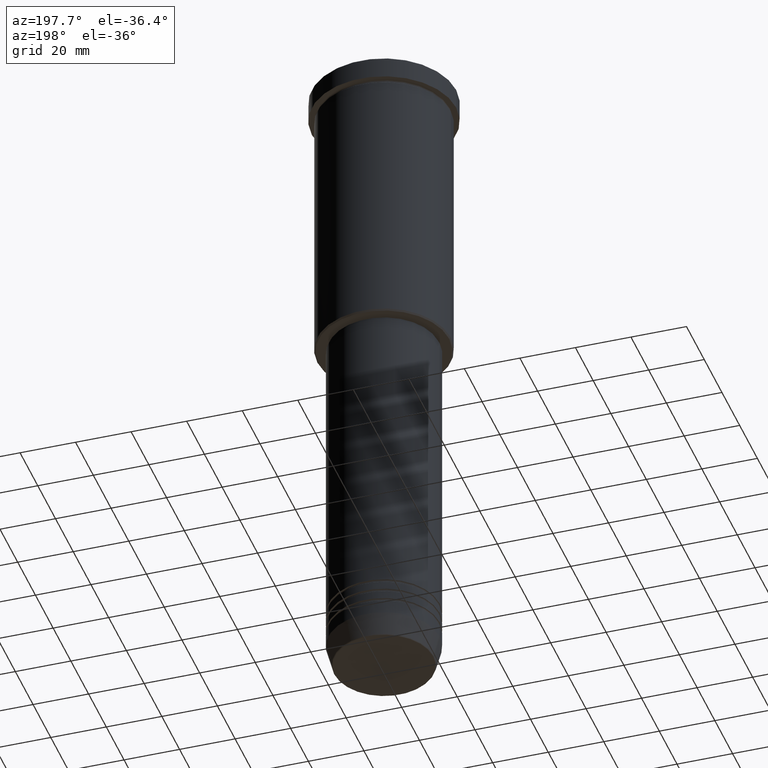
[diagram: clean part render]
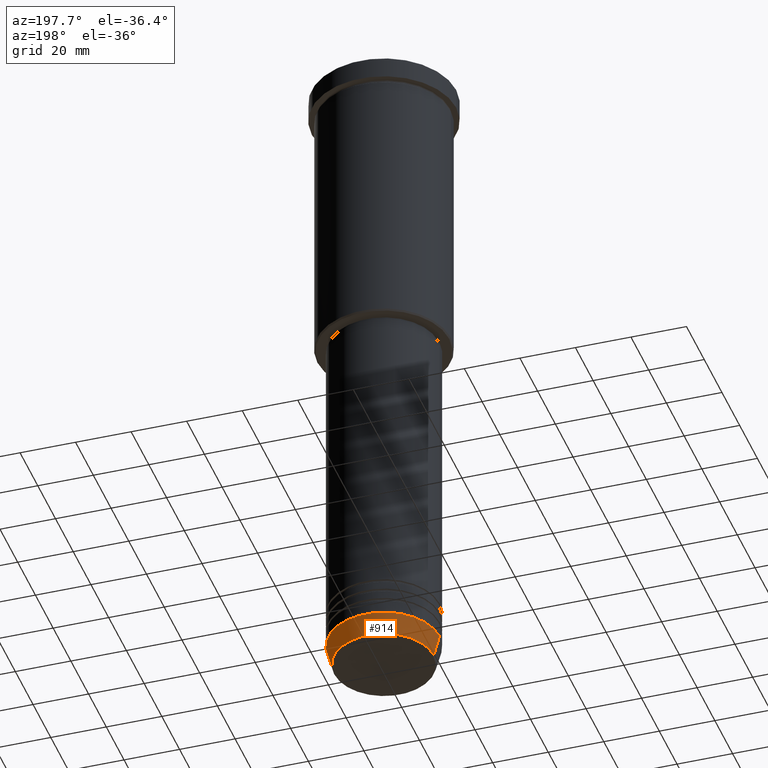
[diagram: same view with one face highlighted and labeled with its STEP entity id]
A machine part, auxiliary view. The second image highlights one B-rep face of the part: STEP entity #914.
In plain terms, the highlighted conical surface has half-angle 15 deg.
Its self-contained STEP definition (entity closure, byte-faithful):
#18 = VERTEX_POINT ( 'NONE', #418 ) ;
#135 = ORIENTED_EDGE ( 'NONE', *, *, #593, .F. ) ;
#143 = EDGE_CURVE ( 'NONE', #307, #1101, #1011, .T. ) ;
#238 = AXIS2_PLACEMENT_3D ( 'NONE', #1102, #1017, #905 ) ;
#251 = ORIENTED_EDGE ( 'NONE', *, *, #143, .T. ) ;
#287 = CARTESIAN_POINT ( 'NONE',  ( -17.95570587970607690, 2.324116685748021371E-15, -239.6294095225512706 ) ) ;
#291 = CARTESIAN_POINT ( 'NONE',  ( -20.00000000000000355, 2.449293598294706907E-15, -232.0000000000000000 ) ) ;
#302 = EDGE_CURVE ( 'NONE', #1101, #514, #736, .T. ) ;
#307 = VERTEX_POINT ( 'NONE', #926 ) ;
#329 = CARTESIAN_POINT ( 'NONE',  ( 0.000000000000000000, 0.000000000000000000, -232.0000000000000000 ) ) ;
#341 = DIRECTION ( 'NONE',  ( 1.000000000000000000, 0.000000000000000000, 0.000000000000000000 ) ) ;
#381 = ORIENTED_EDGE ( 'NONE', *, *, #302, .T. ) ;
#418 = CARTESIAN_POINT ( 'NONE',  ( 20.00000000000000355, 0.000000000000000000, -232.0000000000000000 ) ) ;
#478 = FACE_OUTER_BOUND ( 'NONE', #638, .T. ) ;
#486 = AXIS2_PLACEMENT_3D ( 'NONE', #803, #896, #995 ) ;
#514 = VERTEX_POINT ( 'NONE', #575 ) ;
#526 = VECTOR ( 'NONE', #650, 1000.000000000000000 ) ;
#575 = CARTESIAN_POINT ( 'NONE',  ( -20.00000000000000355, 2.449293598294706907E-15, -232.0000000000000000 ) ) ;
#593 = EDGE_CURVE ( 'NONE', #18, #514, #902, .T. ) ;
#638 = EDGE_LOOP ( 'NONE', ( #251, #381, #135, #910 ) ) ;
#640 = DIRECTION ( 'NONE',  ( 0.2588190451025213501, 0.000000000000000000, 0.9659258262890680902 ) ) ;
#650 = DIRECTION ( 'NONE',  ( -0.2588190451025213501, 3.169619151431772337E-17, 0.9659258262890680902 ) ) ;
#655 = CARTESIAN_POINT ( 'NONE',  ( 20.00000000000000355, 0.000000000000000000, -232.0000000000000000 ) ) ;
#729 = LINE ( 'NONE', #655, #878 ) ;
#736 = LINE ( 'NONE', #291, #526 ) ;
#803 = CARTESIAN_POINT ( 'NONE',  ( 0.000000000000000000, 0.000000000000000000, -239.6294095225512706 ) ) ;
#878 = VECTOR ( 'NONE', #640, 1000.000000000000000 ) ;
#883 = AXIS2_PLACEMENT_3D ( 'NONE', #329, #1166, #341 ) ;
#884 = CONICAL_SURFACE ( 'NONE', #238, 20.00000000000000355, 0.2617993877991500740 ) ;
#896 = DIRECTION ( 'NONE',  ( -0.000000000000000000, -0.000000000000000000, 1.000000000000000000 ) ) ;
#902 = CIRCLE ( 'NONE', #883, 20.00000000000000355 ) ;
#905 = DIRECTION ( 'NONE',  ( 1.000000000000000000, 0.000000000000000000, 0.000000000000000000 ) ) ;
#910 = ORIENTED_EDGE ( 'NONE', *, *, #958, .F. ) ;
#914 = ADVANCED_FACE ( 'NONE', ( #478 ), #884, .T. ) ;
#926 = CARTESIAN_POINT ( 'NONE',  ( 17.95570587970607690, 0.000000000000000000, -239.6294095225512706 ) ) ;
#958 = EDGE_CURVE ( 'NONE', #307, #18, #729, .T. ) ;
#995 = DIRECTION ( 'NONE',  ( 1.000000000000000000, 0.000000000000000000, 0.000000000000000000 ) ) ;
#1011 = CIRCLE ( 'NONE', #486, 17.95570587970607690 ) ;
#1017 = DIRECTION ( 'NONE',  ( -0.000000000000000000, -0.000000000000000000, 1.000000000000000000 ) ) ;
#1101 = VERTEX_POINT ( 'NONE', #287 ) ;
#1102 = CARTESIAN_POINT ( 'NONE',  ( 0.000000000000000000, 0.000000000000000000, -232.0000000000000000 ) ) ;
#1166 = DIRECTION ( 'NONE',  ( -0.000000000000000000, -0.000000000000000000, 1.000000000000000000 ) ) ;